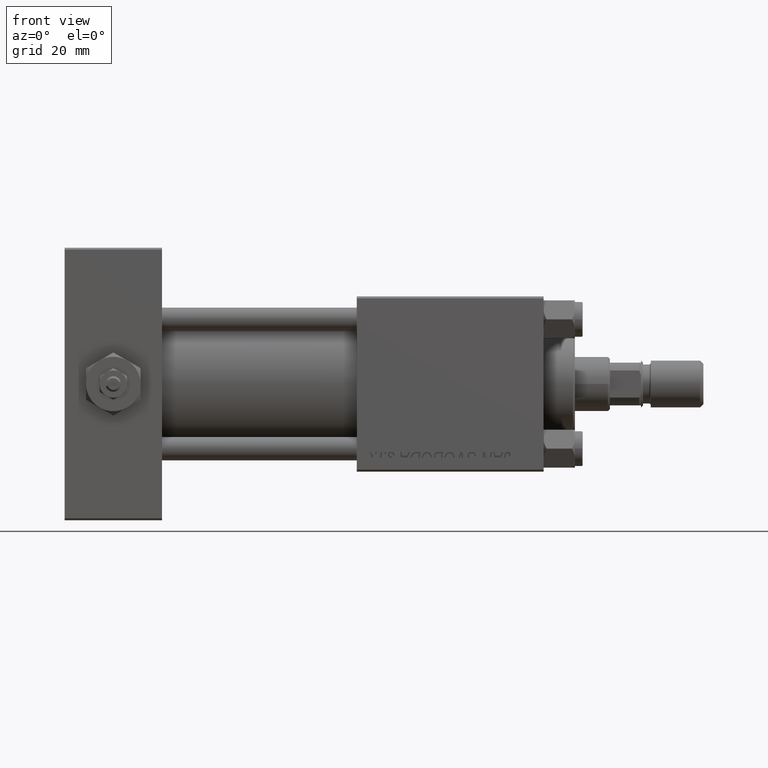
[diagram: clean part render]
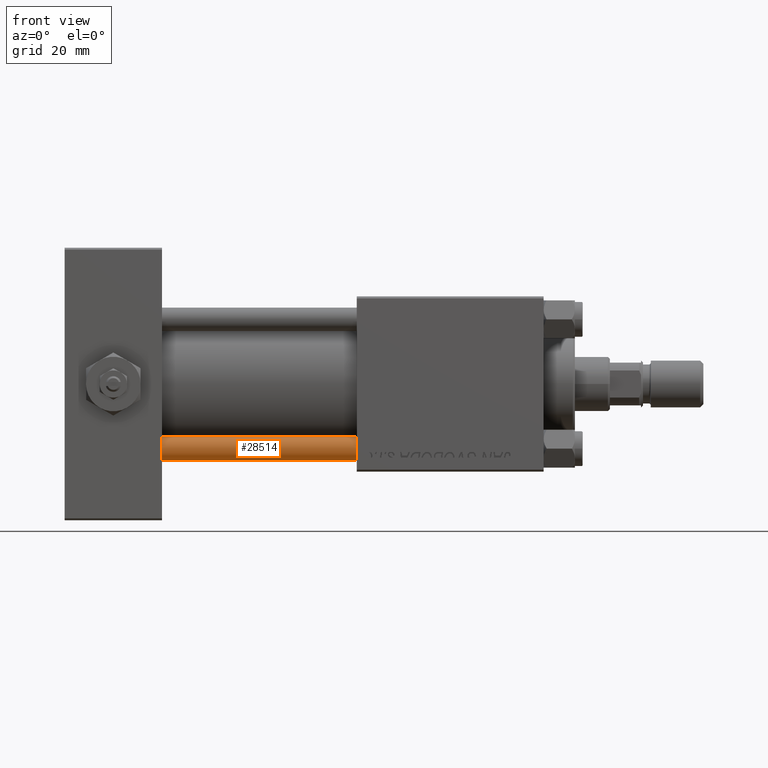
[diagram: same view with one face highlighted and labeled with its STEP entity id]
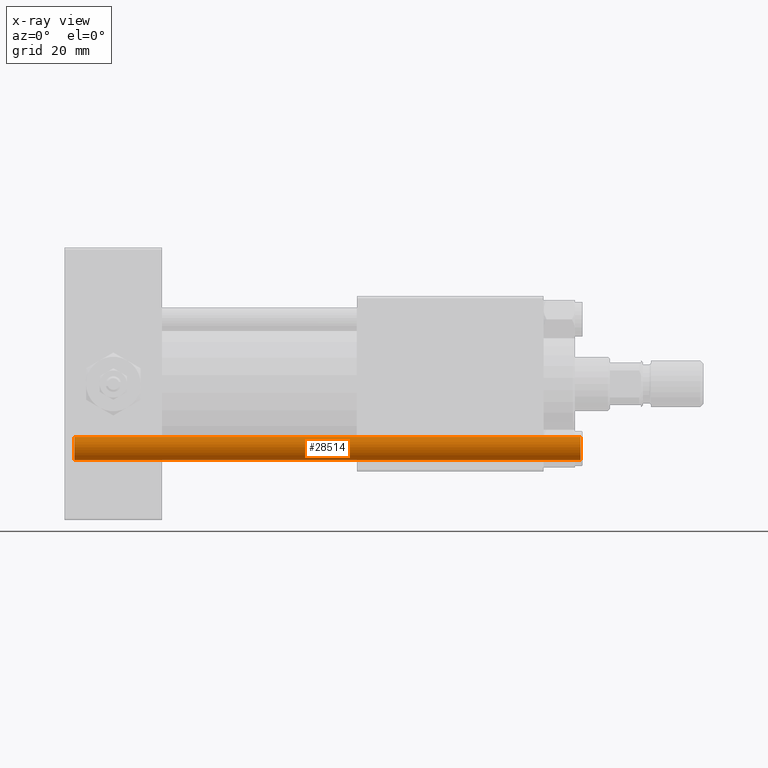
[diagram: x-ray of the same camera — body ghosted, the highlighted face saturated]
A machine part, front view. The second image highlights one B-rep face of the part: STEP entity #28514.
The next image is the same camera in x-ray: the body ghosted, the highlighted face saturated — about 0% of this face is hidden behind the body in this view.
In plain terms, the highlighted cylindrical surface (edge-blend (fillet) strip) has radius 3 mm, axis along (1, -0, -0).
Its self-contained STEP definition (entity closure, byte-faithful):
#306 = DIRECTION ( 'NONE',  ( 1.000000000000000000, 0.000000000000000000, 0.000000000000000000 ) ) ;
#1525 = ORIENTED_EDGE ( 'NONE', *, *, #17354, .T. ) ;
#3609 = CARTESIAN_POINT ( 'NONE',  ( -3.000000000000000444, 0.000000000000000000, 131.0000000000000000 ) ) ;
#7182 = EDGE_CURVE ( 'NONE', #17570, #26344, #8696, .T. ) ;
#7219 = VECTOR ( 'NONE', #36283, 1000.000000000000000 ) ;
#8696 = LINE ( 'NONE', #20559, #44571 ) ;
#12199 = DIRECTION ( 'NONE',  ( -0.000000000000000000, -0.000000000000000000, 1.000000000000000000 ) ) ;
#12865 = AXIS2_PLACEMENT_3D ( 'NONE', #35908, #16379, #306 ) ;
#13380 = VERTEX_POINT ( 'NONE', #50336 ) ;
#16379 = DIRECTION ( 'NONE',  ( 0.000000000000000000, 0.000000000000000000, -1.000000000000000000 ) ) ;
#16396 = CIRCLE ( 'NONE', #45891, 3.000000000000000444 ) ;
#17354 = EDGE_CURVE ( 'NONE', #17570, #26531, #37257, .T. ) ;
#17570 = VERTEX_POINT ( 'NONE', #47671 ) ;
#18640 = EDGE_LOOP ( 'NONE', ( #26604, #1525, #27968, #33179 ) ) ;
#20559 = CARTESIAN_POINT ( 'NONE',  ( 3.000000000000000444, 3.673940397442060361E-16, 131.0000000000000000 ) ) ;
#23036 = CARTESIAN_POINT ( 'NONE',  ( 0.000000000000000000, 0.000000000000000000, 0.5000000000000281997 ) ) ;
#23385 = LINE ( 'NONE', #3609, #7219 ) ;
#25532 = EDGE_CURVE ( 'NONE', #13380, #26344, #16396, .T. ) ;
#26344 = VERTEX_POINT ( 'NONE', #41058 ) ;
#26531 = VERTEX_POINT ( 'NONE', #48155 ) ;
#26604 = ORIENTED_EDGE ( 'NONE', *, *, #7182, .F. ) ;
#27968 = ORIENTED_EDGE ( 'NONE', *, *, #31602, .T. ) ;
#28514 = ADVANCED_FACE ( 'NONE', ( #37383 ), #33418, .T. ) ;
#31602 = EDGE_CURVE ( 'NONE', #26531, #13380, #23385, .T. ) ;
#31686 = AXIS2_PLACEMENT_3D ( 'NONE', #41607, #49535, #45581 ) ;
#33179 = ORIENTED_EDGE ( 'NONE', *, *, #25532, .T. ) ;
#33418 = CYLINDRICAL_SURFACE ( 'NONE', #31686, 3.000000000000000444 ) ;
#35908 = CARTESIAN_POINT ( 'NONE',  ( 0.000000000000000000, 0.000000000000000000, 130.5000000000000284 ) ) ;
#36283 = DIRECTION ( 'NONE',  ( -0.000000000000000000, -0.000000000000000000, -1.000000000000000000 ) ) ;
#37257 = CIRCLE ( 'NONE', #12865, 3.000000000000000444 ) ;
#37383 = FACE_OUTER_BOUND ( 'NONE', #18640, .T. ) ;
#41058 = CARTESIAN_POINT ( 'NONE',  ( 3.000000000000000444, 3.673940397442060361E-16, 0.5000000000000281997 ) ) ;
#41607 = CARTESIAN_POINT ( 'NONE',  ( 0.000000000000000000, 0.000000000000000000, 131.0000000000000000 ) ) ;
#44571 = VECTOR ( 'NONE', #45622, 1000.000000000000000 ) ;
#45581 = DIRECTION ( 'NONE',  ( -1.000000000000000000, 0.000000000000000000, 0.000000000000000000 ) ) ;
#45622 = DIRECTION ( 'NONE',  ( -0.000000000000000000, -0.000000000000000000, -1.000000000000000000 ) ) ;
#45891 = AXIS2_PLACEMENT_3D ( 'NONE', #23036, #12199, #47825 ) ;
#47671 = CARTESIAN_POINT ( 'NONE',  ( 3.000000000000000444, 3.673940397442060361E-16, 130.5000000000000284 ) ) ;
#47825 = DIRECTION ( 'NONE',  ( 1.000000000000000000, 0.000000000000000000, 0.000000000000000000 ) ) ;
#48155 = CARTESIAN_POINT ( 'NONE',  ( -3.000000000000000444, 0.000000000000000000, 130.5000000000000284 ) ) ;
#49535 = DIRECTION ( 'NONE',  ( -0.000000000000000000, -0.000000000000000000, -1.000000000000000000 ) ) ;
#50336 = CARTESIAN_POINT ( 'NONE',  ( -3.000000000000000444, 0.000000000000000000, 0.5000000000000281997 ) ) ;